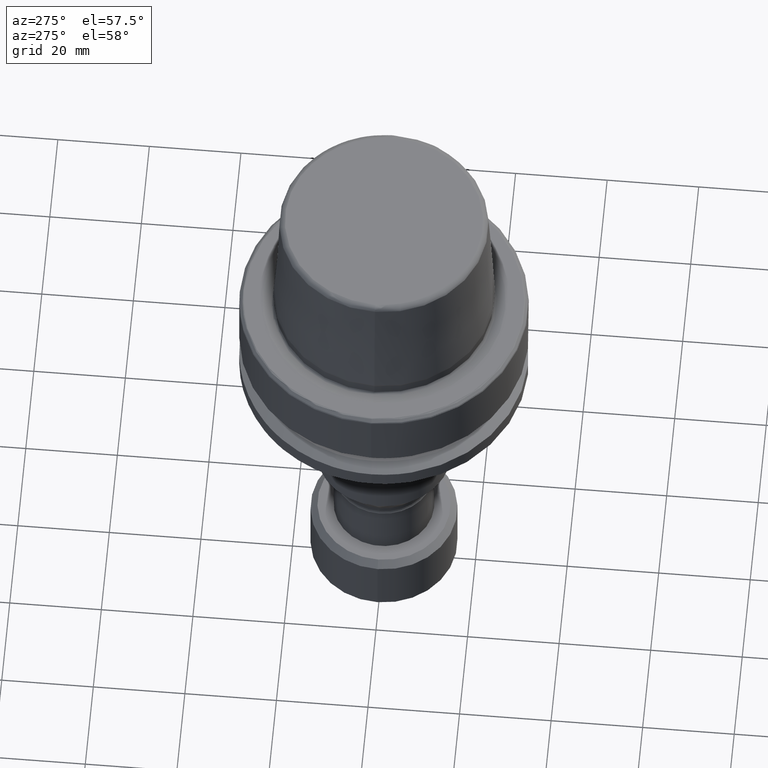
[diagram: clean part render]
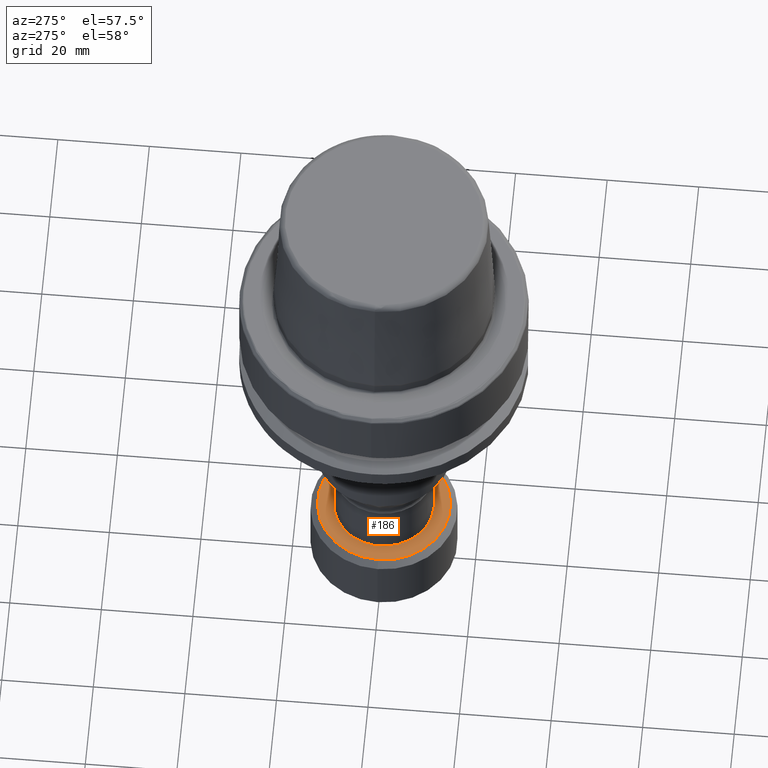
[diagram: same view with one face highlighted and labeled with its STEP entity id]
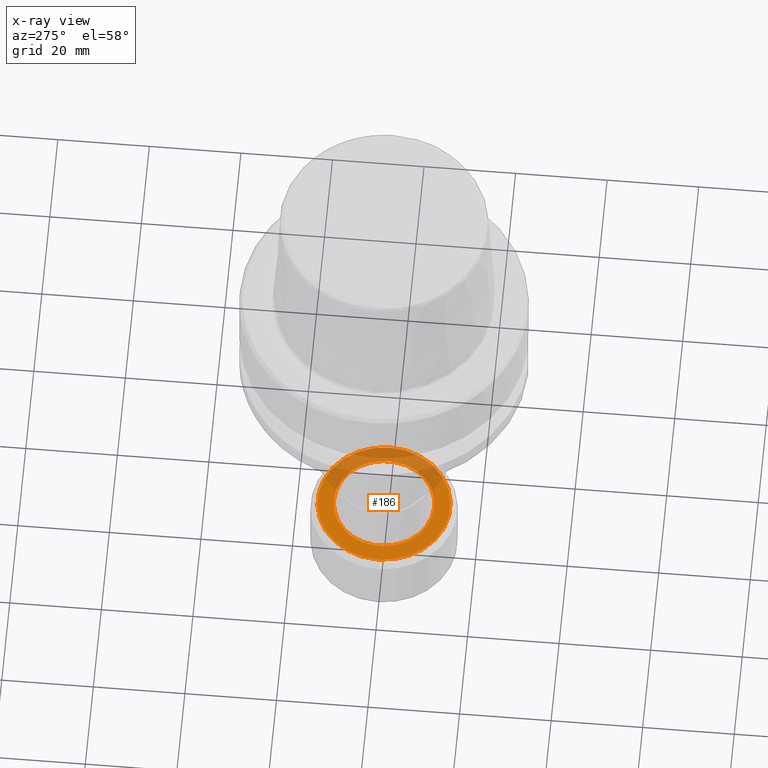
[diagram: x-ray of the same camera — body ghosted, the highlighted face saturated]
A machine part, auxiliary view. The second image highlights one B-rep face of the part: STEP entity #186.
The next image is the same camera in x-ray: the body ghosted, the highlighted face saturated — about 37% of this face is hidden behind the body in this view.
In plain terms, the highlighted planar face has unit normal (0, 0, -1).
Its self-contained STEP definition (entity closure, byte-faithful):
#186 = ADVANCED_FACE ( 'NONE', ( #4154, #2416 ), #3793, .F. ) ;
#324 = CARTESIAN_POINT ( 'NONE',  ( 14.67399999999999900, -14.67399999999999900, -82.50000000000000000 ) ) ;
#362 = CIRCLE ( 'NONE', #1119, 14.50000000000001400 ) ;
#434 = DIRECTION ( 'NONE',  ( -0.0000000000000000000, -6.336889409960939200E-016, 1.000000000000000000 ) ) ;
#449 = EDGE_LOOP ( 'NONE', ( #4203, #1072 ) ) ;
#472 = CARTESIAN_POINT ( 'NONE',  ( -14.50000000000001400, 0.0000000000000000000, -82.50000000000001400 ) ) ;
#563 = ORIENTED_EDGE ( 'NONE', *, *, #1247, .F. ) ;
#742 = DIRECTION ( 'NONE',  ( 0.0000000000000000000, 0.0000000000000000000, -1.000000000000000000 ) ) ;
#793 = DIRECTION ( 'NONE',  ( -0.0000000000000000000, -0.0000000000000000000, 1.000000000000000000 ) ) ;
#827 = EDGE_CURVE ( 'NONE', #3428, #2229, #3636, .T. ) ;
#846 = DIRECTION ( 'NONE',  ( 0.0000000000000000000, 1.000000000000000000, 1.267377881992187600E-015 ) ) ;
#885 = AXIS2_PLACEMENT_3D ( 'NONE', #2859, #2457, #846 ) ;
#1053 = ORIENTED_EDGE ( 'NONE', *, *, #827, .F. ) ;
#1072 = ORIENTED_EDGE ( 'NONE', *, *, #2653, .T. ) ;
#1083 = CARTESIAN_POINT ( 'NONE',  ( 0.0000000000000000000, 8.301325127048830000E-015, -82.50000000000000000 ) ) ;
#1119 = AXIS2_PLACEMENT_3D ( 'NONE', #1316, #3560, #1629 ) ;
#1247 = EDGE_CURVE ( 'NONE', #2229, #3428, #2837, .T. ) ;
#1316 = CARTESIAN_POINT ( 'NONE',  ( 0.0000000000000000000, 0.0000000000000000000, -82.50000000000001400 ) ) ;
#1629 = DIRECTION ( 'NONE',  ( -1.000000000000000000, 0.0000000000000000000, 0.0000000000000000000 ) ) ;
#1644 = CARTESIAN_POINT ( 'NONE',  ( 1.340988245066351900E-015, -10.94999999999999200, -82.50000000000001400 ) ) ;
#1881 = AXIS2_PLACEMENT_3D ( 'NONE', #2727, #793, #3063 ) ;
#2171 = VERTEX_POINT ( 'NONE', #3860 ) ;
#2219 = AXIS2_PLACEMENT_3D ( 'NONE', #324, #742, #3114 ) ;
#2229 = VERTEX_POINT ( 'NONE', #2284 ) ;
#2284 = CARTESIAN_POINT ( 'NONE',  ( 0.0000000000000000000, 10.95000000000001000, -82.49999999999998600 ) ) ;
#2404 = VERTEX_POINT ( 'NONE', #472 ) ;
#2416 = FACE_OUTER_BOUND ( 'NONE', #449, .T. ) ;
#2457 = DIRECTION ( 'NONE',  ( -0.0000000000000000000, -6.336889409960939200E-016, 1.000000000000000000 ) ) ;
#2507 = EDGE_LOOP ( 'NONE', ( #563, #1053 ) ) ;
#2653 = EDGE_CURVE ( 'NONE', #2171, #2404, #362, .T. ) ;
#2727 = CARTESIAN_POINT ( 'NONE',  ( 0.0000000000000000000, 0.0000000000000000000, -82.50000000000001400 ) ) ;
#2837 = CIRCLE ( 'NONE', #2968, 10.95000000000000100 ) ;
#2859 = CARTESIAN_POINT ( 'NONE',  ( 0.0000000000000000000, 8.301325127048830000E-015, -82.50000000000000000 ) ) ;
#2968 = AXIS2_PLACEMENT_3D ( 'NONE', #1083, #434, #4127 ) ;
#3063 = DIRECTION ( 'NONE',  ( -1.000000000000000000, 0.0000000000000000000, 0.0000000000000000000 ) ) ;
#3114 = DIRECTION ( 'NONE',  ( -1.000000000000000000, 0.0000000000000000000, 0.0000000000000000000 ) ) ;
#3428 = VERTEX_POINT ( 'NONE', #1644 ) ;
#3560 = DIRECTION ( 'NONE',  ( -0.0000000000000000000, -0.0000000000000000000, 1.000000000000000000 ) ) ;
#3601 = CIRCLE ( 'NONE', #1881, 14.50000000000001400 ) ;
#3607 = EDGE_CURVE ( 'NONE', #2404, #2171, #3601, .T. ) ;
#3636 = CIRCLE ( 'NONE', #885, 10.95000000000000100 ) ;
#3793 = PLANE ( 'NONE',  #2219 ) ;
#3860 = CARTESIAN_POINT ( 'NONE',  ( 14.50000000000001400, 1.867586368699714600E-015, -82.50000000000001400 ) ) ;
#4127 = DIRECTION ( 'NONE',  ( 0.0000000000000000000, 1.000000000000000000, 1.267377881992187600E-015 ) ) ;
#4154 = FACE_BOUND ( 'NONE', #2507, .T. ) ;
#4203 = ORIENTED_EDGE ( 'NONE', *, *, #3607, .T. ) ;